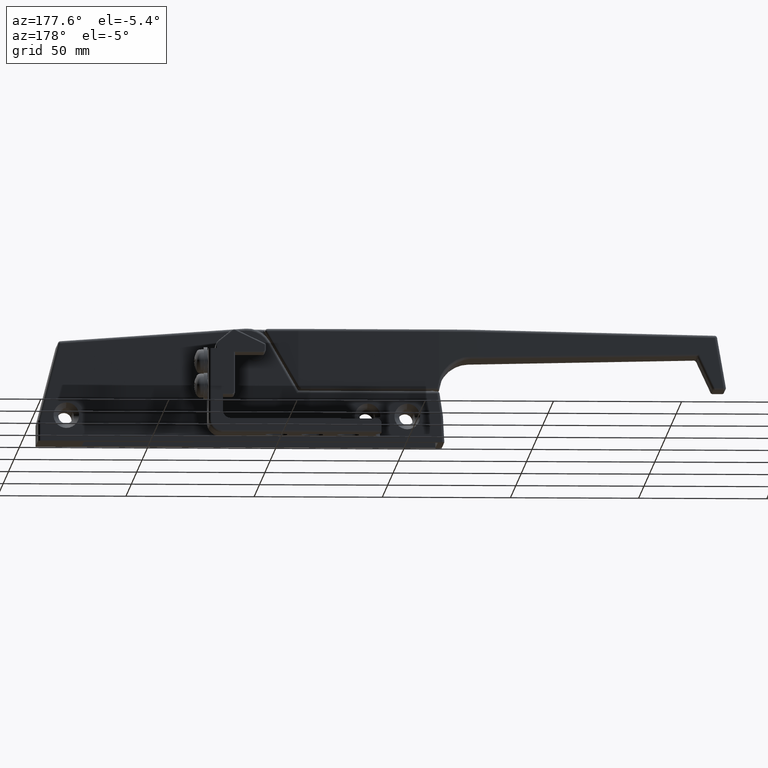
[diagram: clean part render]
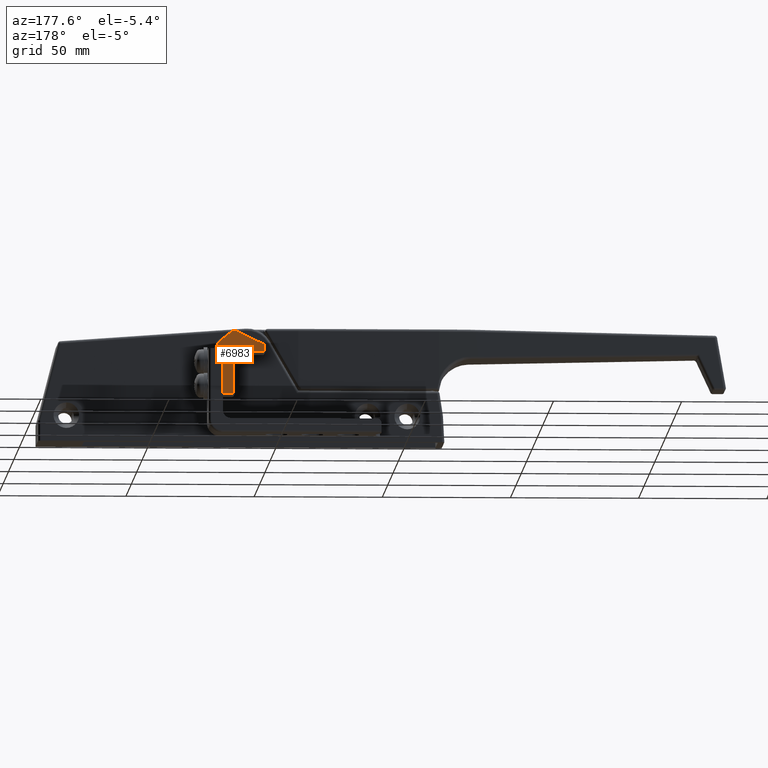
[diagram: same view with one face highlighted and labeled with its STEP entity id]
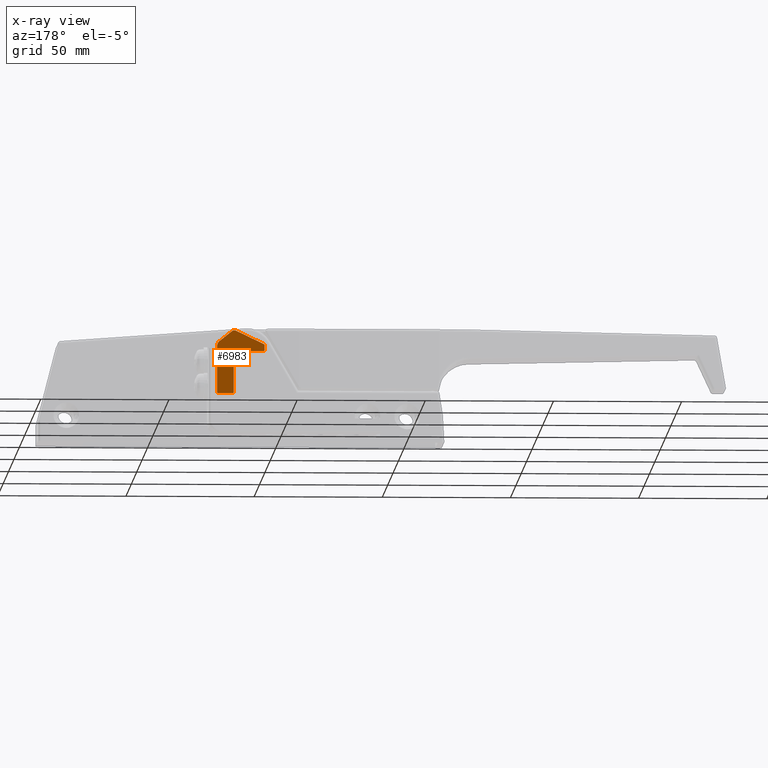
[diagram: x-ray of the same camera — body ghosted, the highlighted face saturated]
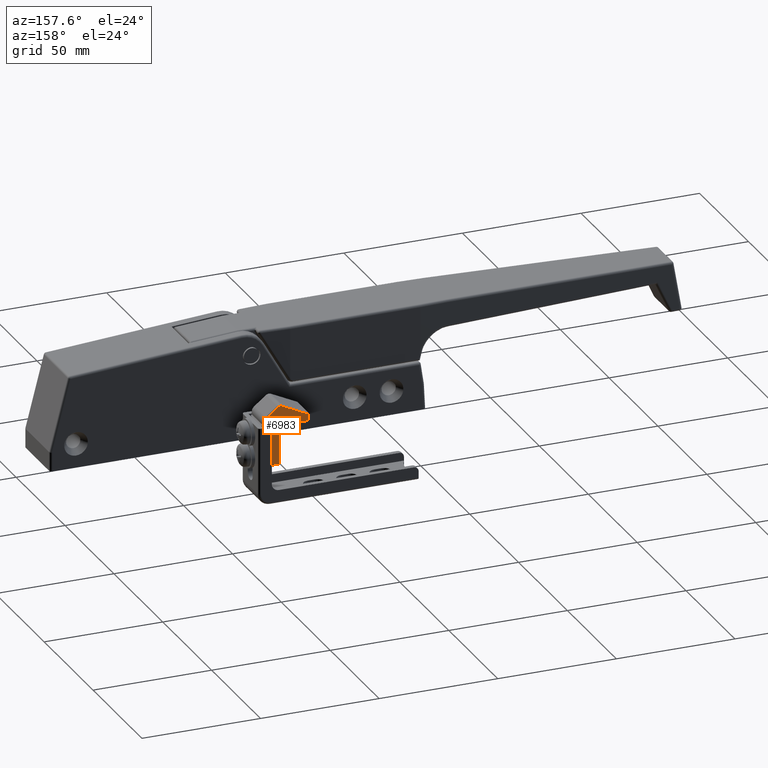
[diagram: same view with one face highlighted and labeled with its STEP entity id]
A machine part, auxiliary view. The second image highlights one B-rep face of the part: STEP entity #6983.
The next image is the same camera in x-ray: the body ghosted, the highlighted face saturated — about 0% of this face is hidden behind the body in this view.
A second angle (auxiliary view) of the same face is appended — the face is thin or edge-on in the first view.
In plain terms, the highlighted planar face has unit normal (-0, 1, 0).
Its self-contained STEP definition (entity closure, byte-faithful):
#243=PLANE('',#7513);
#565=FACE_OUTER_BOUND('',#1003,.T.);
#1003=EDGE_LOOP('',(#5278,#5279,#5280,#5281,#5282,#5283,#5284,#5285,#5286,
#5287,#5288,#5289));
#1523=CIRCLE('',#7514,1.5);
#1524=CIRCLE('',#7515,2.5);
#1525=CIRCLE('',#7516,0.5);
#1526=CIRCLE('',#7517,0.5);
#1527=CIRCLE('',#7518,0.5);
#1888=LINE('',#11531,#2527);
#1889=LINE('',#11533,#2528);
#1890=LINE('',#11537,#2529);
#1891=LINE('',#11541,#2530);
#1892=LINE('',#11545,#2531);
#1893=LINE('',#11549,#2532);
#1894=LINE('',#11551,#2533);
#2527=VECTOR('',#8671,2.18538301505);
#2528=VECTOR('',#8672,12.2937567271215);
#2529=VECTOR('',#8675,6.26544847815874);
#2530=VECTOR('',#8678,17.95812545754);
#2531=VECTOR('',#8681,5.5);
#2532=VECTOR('',#8684,16.);
#2533=VECTOR('',#8685,11.5);
#3212=VERTEX_POINT('',#11529);
#3213=VERTEX_POINT('',#11530);
#3214=VERTEX_POINT('',#11532);
#3215=VERTEX_POINT('',#11534);
#3216=VERTEX_POINT('',#11536);
#3217=VERTEX_POINT('',#11538);
#3218=VERTEX_POINT('',#11540);
#3219=VERTEX_POINT('',#11542);
#3220=VERTEX_POINT('',#11544);
#3221=VERTEX_POINT('',#11546);
#3222=VERTEX_POINT('',#11548);
#3223=VERTEX_POINT('',#11550);
#3962=EDGE_CURVE('',#3212,#3213,#1888,.T.);
#3963=EDGE_CURVE('',#3213,#3214,#1889,.T.);
#3964=EDGE_CURVE('',#3214,#3215,#1523,.T.);
#3965=EDGE_CURVE('',#3215,#3216,#1890,.T.);
#3966=EDGE_CURVE('',#3216,#3217,#1524,.T.);
#3967=EDGE_CURVE('',#3217,#3218,#1891,.T.);
#3968=EDGE_CURVE('',#3218,#3219,#1525,.T.);
#3969=EDGE_CURVE('',#3219,#3220,#1892,.T.);
#3970=EDGE_CURVE('',#3220,#3221,#1526,.T.);
#3971=EDGE_CURVE('',#3221,#3222,#1893,.T.);
#3972=EDGE_CURVE('',#3222,#3223,#1894,.T.);
#3973=EDGE_CURVE('',#3223,#3212,#1527,.T.);
#5278=ORIENTED_EDGE('',*,*,#3962,.T.);
#5279=ORIENTED_EDGE('',*,*,#3963,.T.);
#5280=ORIENTED_EDGE('',*,*,#3964,.T.);
#5281=ORIENTED_EDGE('',*,*,#3965,.T.);
#5282=ORIENTED_EDGE('',*,*,#3966,.T.);
#5283=ORIENTED_EDGE('',*,*,#3967,.T.);
#5284=ORIENTED_EDGE('',*,*,#3968,.T.);
#5285=ORIENTED_EDGE('',*,*,#3969,.T.);
#5286=ORIENTED_EDGE('',*,*,#3970,.T.);
#5287=ORIENTED_EDGE('',*,*,#3971,.T.);
#5288=ORIENTED_EDGE('',*,*,#3972,.T.);
#5289=ORIENTED_EDGE('',*,*,#3973,.T.);
#6983=ADVANCED_FACE('',(#565),#243,.T.);
#7513=AXIS2_PLACEMENT_3D('',#11528,#8669,#8670);
#7514=AXIS2_PLACEMENT_3D('',#11535,#8673,#8674);
#7515=AXIS2_PLACEMENT_3D('',#11539,#8676,#8677);
#7516=AXIS2_PLACEMENT_3D('',#11543,#8679,#8680);
#7517=AXIS2_PLACEMENT_3D('',#11547,#8682,#8683);
#7518=AXIS2_PLACEMENT_3D('',#11552,#8686,#8687);
#8669=DIRECTION('center_axis',(0.,0.,1.));
#8670=DIRECTION('ref_axis',(0.,-1.,0.));
#8671=DIRECTION('',(0.,1.,0.));
#8672=DIRECTION('',(-0.901523057468267,0.432731067584784,0.));
#8673=DIRECTION('center_axis',(0.,0.,1.));
#8674=DIRECTION('ref_axis',(0.432731067584784,0.901523057468267,0.));
#8675=DIRECTION('',(-0.78086880944303,-0.624695047554424,0.));
#8676=DIRECTION('center_axis',(0.,0.,1.));
#8677=DIRECTION('ref_axis',(-0.624695047554424,0.78086880944303,0.));
#8678=DIRECTION('',(1.226565927532E-14,-1.,0.));
#8679=DIRECTION('center_axis',(0.,0.,1.));
#8680=DIRECTION('ref_axis',(-1.,-1.398881011028E-14,0.));
#8681=DIRECTION('',(1.,0.,0.));
#8682=DIRECTION('center_axis',(0.,0.,1.));
#8683=DIRECTION('ref_axis',(0.,-1.,0.));
#8684=DIRECTION('',(0.,1.,0.));
#8685=DIRECTION('',(1.,0.,0.));
#8686=DIRECTION('center_axis',(0.,0.,1.));
#8687=DIRECTION('ref_axis',(0.,-1.,0.));
#11528=CARTESIAN_POINT('Origin',(-25.5,25.652988902,6.));
#11529=CARTESIAN_POINT('',(15.25,17.5,6.));
#11530=CARTESIAN_POINT('',(15.25,19.68538301505,6.));
#11531=CARTESIAN_POINT('',(15.25,17.5,6.));
#11532=CARTESIAN_POINT('',(4.166894847592,25.0052734882,6.));
#11533=CARTESIAN_POINT('',(15.25,19.68538301505,6.));
#11534=CARTESIAN_POINT('',(2.580755674883,24.82429211616,6.));
#11535=CARTESIAN_POINT('Origin',(3.517798246215,23.652988902,6.));
#11536=CARTESIAN_POINT('',(-2.311737618886,20.91029748115,6.));
#11537=CARTESIAN_POINT('',(2.580755674883,24.82429211616,6.));
#11538=CARTESIAN_POINT('',(-3.25,18.95812545754,6.));
#11539=CARTESIAN_POINT('Origin',(-0.7500000000001,18.95812545754,6.));
#11540=CARTESIAN_POINT('',(-3.25,1.,6.));
#11541=CARTESIAN_POINT('',(-3.25,18.95812545754,6.));
#11542=CARTESIAN_POINT('',(-2.75,0.5,6.));
#11543=CARTESIAN_POINT('Origin',(-2.75,1.,6.));
#11544=CARTESIAN_POINT('',(2.75,0.5,6.));
#11545=CARTESIAN_POINT('',(-2.75,0.5,6.));
#11546=CARTESIAN_POINT('',(3.25,1.,6.));
#11547=CARTESIAN_POINT('Origin',(2.75,1.,6.));
#11548=CARTESIAN_POINT('',(3.25,17.,6.));
#11549=CARTESIAN_POINT('',(3.25,1.,6.));
#11550=CARTESIAN_POINT('',(14.75,17.,6.));
#11551=CARTESIAN_POINT('',(3.25,17.,6.));
#11552=CARTESIAN_POINT('Origin',(14.75,17.5,6.));